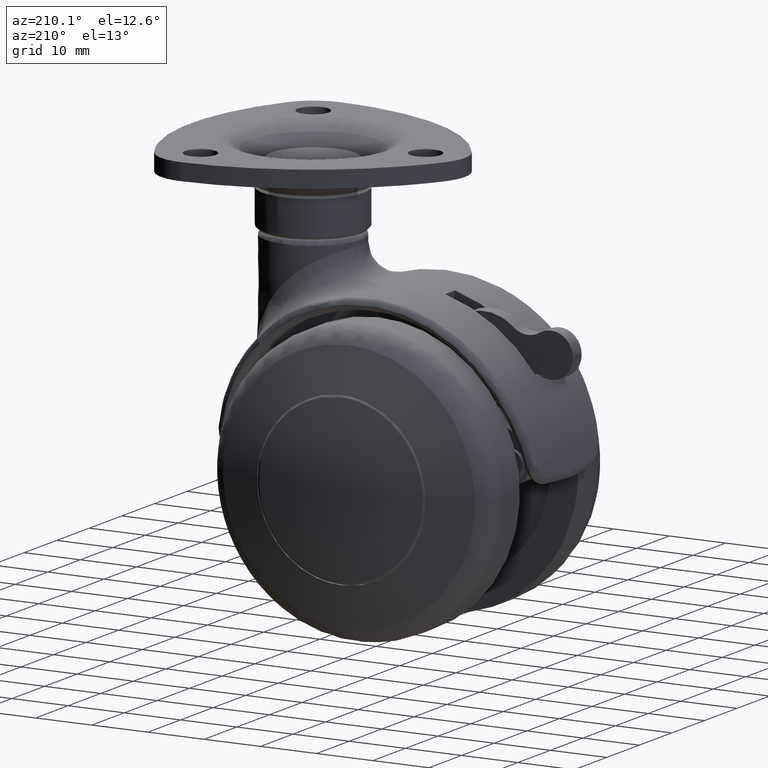
[diagram: clean part render]
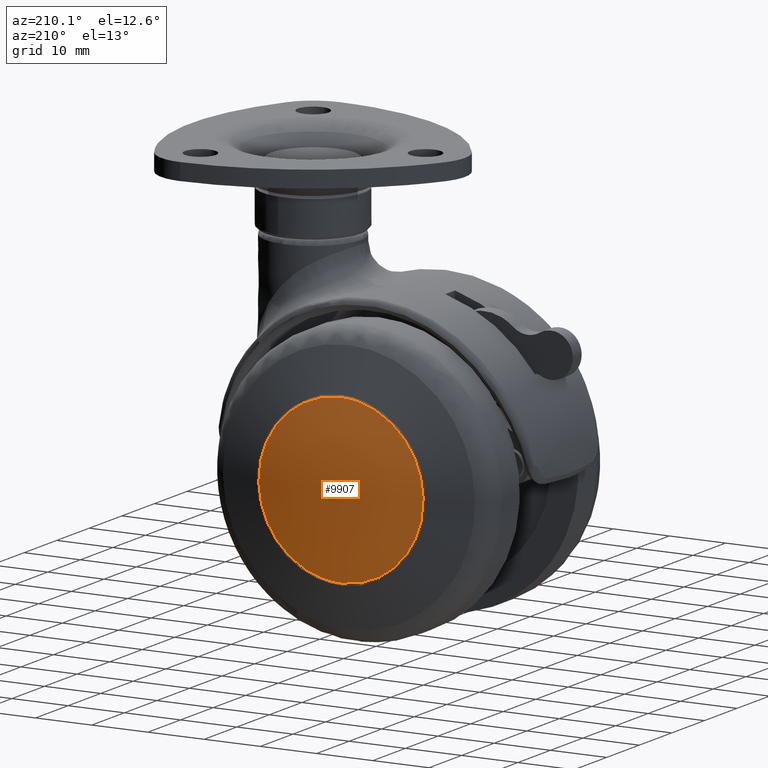
[diagram: same view with one face highlighted and labeled with its STEP entity id]
A machine part, auxiliary view. The second image highlights one B-rep face of the part: STEP entity #9907.
In plain terms, the highlighted face is a freeform B-spline surface patch.
Its self-contained STEP definition (entity closure, byte-faithful):
#8547=CARTESIAN_POINT('',(14.244772098325660,20.763958011320149,3.278191671556798));
#8548=VERTEX_POINT('',#8547);
#8562=CARTESIAN_POINT('',(0.0,20.763958012131202,14.617115743890441));
#8563=VERTEX_POINT('',#8562);
#8564=CARTESIAN_POINT('',(0.0,20.763958012131202,14.617115743890441));
#8565=CARTESIAN_POINT('',(11.635311852041729,20.763958012131205,14.617115743890436));
#8566=CARTESIAN_POINT('',(14.244772098325662,20.763958011320145,3.278191671556798));
#8574=(BOUNDED_CURVE()B_SPLINE_CURVE(2,(#8564,#8565,#8566),.UNSPECIFIED.,.F.,.U.)B_SPLINE_CURVE_WITH_KNOTS((3,3),(0.500000000000000,0.711647087617310),.UNSPECIFIED.)CURVE()GEOMETRIC_REPRESENTATION_ITEM()RATIONAL_B_SPLINE_CURVE((1.0,0.752040013021093,0.923920098759881))REPRESENTATION_ITEM(''));
#8575=EDGE_CURVE('',#8563,#8548,#8574,.T.);
#8577=CARTESIAN_POINT('',(-14.244772098325660,20.763958011320138,-3.278191671556805));
#8578=VERTEX_POINT('',#8577);
#8579=CARTESIAN_POINT('',(-14.244772098325665,20.763958011320138,-3.278191671556805));
#8580=CARTESIAN_POINT('',(-14.617115743890444,20.763958012131205,-1.660241608265169));
#8581=CARTESIAN_POINT('',(-14.617115743890441,20.763958012131202,-6.670128E-016));
#8582=CARTESIAN_POINT('',(-14.617115743890446,20.763958012131209,14.617115743890446));
#8583=CARTESIAN_POINT('',(0.0,20.763958012131202,14.617115743890441));
#8591=(BOUNDED_CURVE()B_SPLINE_CURVE(2,(#8579,#8580,#8581,#8582,#8583),.UNSPECIFIED.,.F.,.U.)B_SPLINE_CURVE_WITH_KNOTS((3,2,3),(0.211647087617311,0.250000000000000,0.500000000000000),.UNSPECIFIED.)CURVE()GEOMETRIC_REPRESENTATION_ITEM()RATIONAL_B_SPLINE_CURVE((0.923920098759881,0.955066768165455,1.0,0.707106781186547,1.0))REPRESENTATION_ITEM(''));
#8592=EDGE_CURVE('',#8578,#8563,#8591,.T.);
#8639=CARTESIAN_POINT('',(0.0,20.763958012131202,-14.617115743890441));
#8640=VERTEX_POINT('',#8639);
#8641=CARTESIAN_POINT('',(0.0,20.763958012131202,-14.617115743890441));
#8642=CARTESIAN_POINT('',(-11.635311852041740,20.763958012131194,-14.617115743890439));
#8643=CARTESIAN_POINT('',(-14.244772098325665,20.763958011320138,-3.278191671556805));
#8651=(BOUNDED_CURVE()B_SPLINE_CURVE(2,(#8641,#8642,#8643),.UNSPECIFIED.,.F.,.U.)B_SPLINE_CURVE_WITH_KNOTS((3,3),(0.0,0.211647087617311),.UNSPECIFIED.)CURVE()GEOMETRIC_REPRESENTATION_ITEM()RATIONAL_B_SPLINE_CURVE((1.0,0.752040013021092,0.923920098759881))REPRESENTATION_ITEM(''));
#8652=EDGE_CURVE('',#8640,#8578,#8651,.T.);
#8654=CARTESIAN_POINT('',(14.244772098325662,20.763958011320145,3.278191671556798));
#8655=CARTESIAN_POINT('',(14.617115743890443,20.763958012131202,1.660241608265163));
#8656=CARTESIAN_POINT('',(14.617115743890441,20.763958012131202,-6.670128E-016));
#8657=CARTESIAN_POINT('',(14.617115743890446,20.763958012131209,-14.617115743890446));
#8658=CARTESIAN_POINT('',(0.0,20.763958012131202,-14.617115743890441));
#8666=(BOUNDED_CURVE()B_SPLINE_CURVE(2,(#8654,#8655,#8656,#8657,#8658),.UNSPECIFIED.,.F.,.U.)B_SPLINE_CURVE_WITH_KNOTS((3,2,3),(0.711647087617311,0.750000000000000,1.0),.UNSPECIFIED.)CURVE()GEOMETRIC_REPRESENTATION_ITEM()RATIONAL_B_SPLINE_CURVE((0.923920098759881,0.955066768165455,1.0,0.707106781186547,1.0))REPRESENTATION_ITEM(''));
#8667=EDGE_CURVE('',#8548,#8640,#8666,.T.);
#9877=CARTESIAN_POINT('',(-15.764689061263056,18.381233496122437,15.766104876380703));
#9878=CARTESIAN_POINT('',(-8.014575224775268,20.405881407763985,16.030590015750757));
#9879=CARTESIAN_POINT('',(8.014574896131048,20.405881407763985,16.030590015750757));
#9880=CARTESIAN_POINT('',(15.764688436150134,18.381233659427583,15.766104897713687));
#9881=CARTESIAN_POINT('',(-16.029198750905191,20.406251190428570,8.015319160721656));
#9882=CARTESIAN_POINT('',(-8.151343081289213,22.499999999999790,8.152075147409818));
#9883=CARTESIAN_POINT('',(8.151342747036715,22.499999999999790,8.152075147409818));
#9884=CARTESIAN_POINT('',(16.029198115667665,20.406251359259784,8.015319171749097));
#9885=CARTESIAN_POINT('',(-16.029198750905191,20.406251190428570,-8.015318832076451));
#9886=CARTESIAN_POINT('',(-8.151343081289213,22.499999999999790,-8.152074813157324));
#9887=CARTESIAN_POINT('',(8.151342747036715,22.499999999999790,-8.152074813157324));
#9888=CARTESIAN_POINT('',(16.029198115667665,20.406251359259784,-8.015318843103890));
#9889=CARTESIAN_POINT('',(-15.764689082596041,18.381233659442255,-15.766104251271617));
#9890=CARTESIAN_POINT('',(-8.014575235802637,20.405881576609328,-16.030589380519032));
#9891=CARTESIAN_POINT('',(8.014574907158416,20.405881576609328,-16.030589380519032));
#9892=CARTESIAN_POINT('',(15.764688457483119,18.381233822747408,-15.766104272604599));
#9900=(BOUNDED_SURFACE()B_SPLINE_SURFACE(2,2,((#9877,#9881,#9885,#9889),(#9878,#9882,#9886,#9890),(#9879,#9883,#9887,#9891),(#9880,#9884,#9888,#9892)),.UNSPECIFIED.,.F.,.F.,.U.)B_SPLINE_SURFACE_WITH_KNOTS((3,1,3),(3,1,3),(14.985630810356140,30.776602115142691,46.567572772407530),(14.984212634849550,30.776602115142691,46.568990947914124),.UNSPECIFIED.)GEOMETRIC_REPRESENTATION_ITEM()RATIONAL_B_SPLINE_SURFACE(((1.034126718213386,1.017061826727789,1.017061826727789,1.034126716813992),(1.017064891485597,1.0,1.0,1.017064890086203),(1.017064891485597,1.0,1.0,1.017064890086203),(1.034126716814118,1.017061825328520,1.017061825328520,1.034126715414724)))REPRESENTATION_ITEM('')SURFACE());
#9901=ORIENTED_EDGE('',*,*,#8652,.T.);
#9902=ORIENTED_EDGE('',*,*,#8592,.T.);
#9903=ORIENTED_EDGE('',*,*,#8575,.T.);
#9904=ORIENTED_EDGE('',*,*,#8667,.T.);
#9905=EDGE_LOOP('',(#9901,#9902,#9903,#9904));
#9906=FACE_OUTER_BOUND('',#9905,.T.);
#9907=ADVANCED_FACE('',(#9906),#9900,.T.);